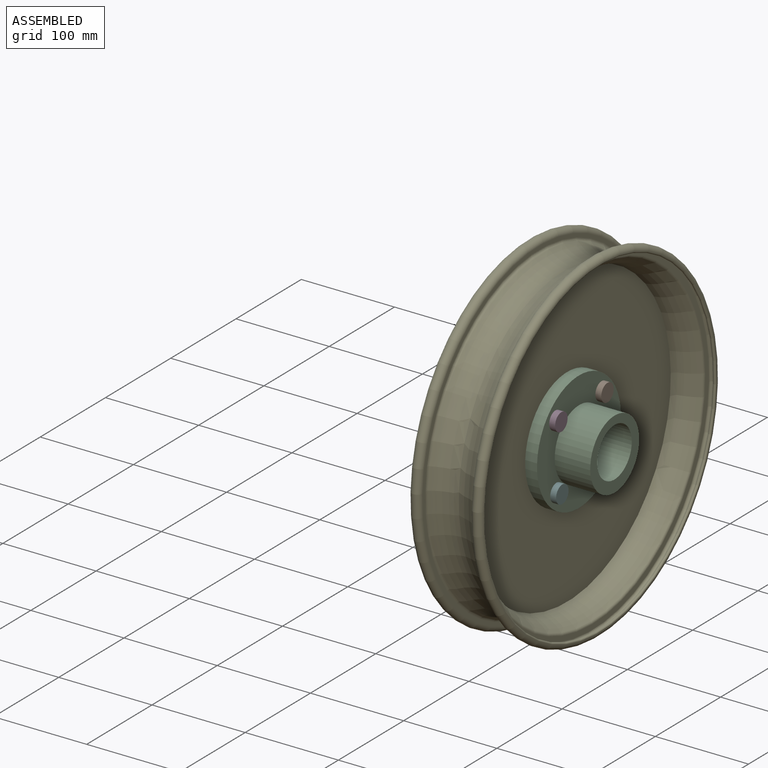
[diagram: assembled view]
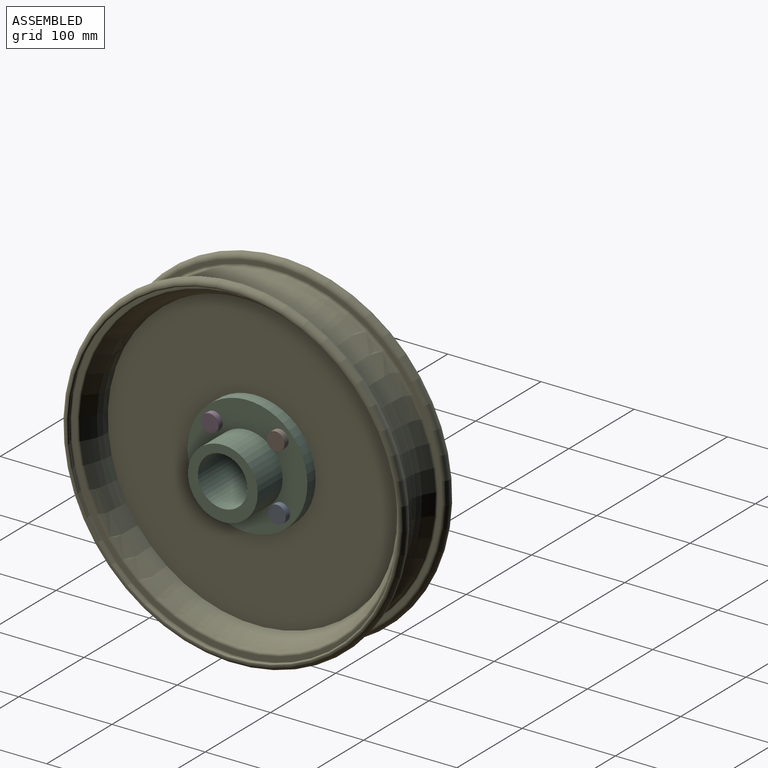
[diagram: assembled view, second angle]
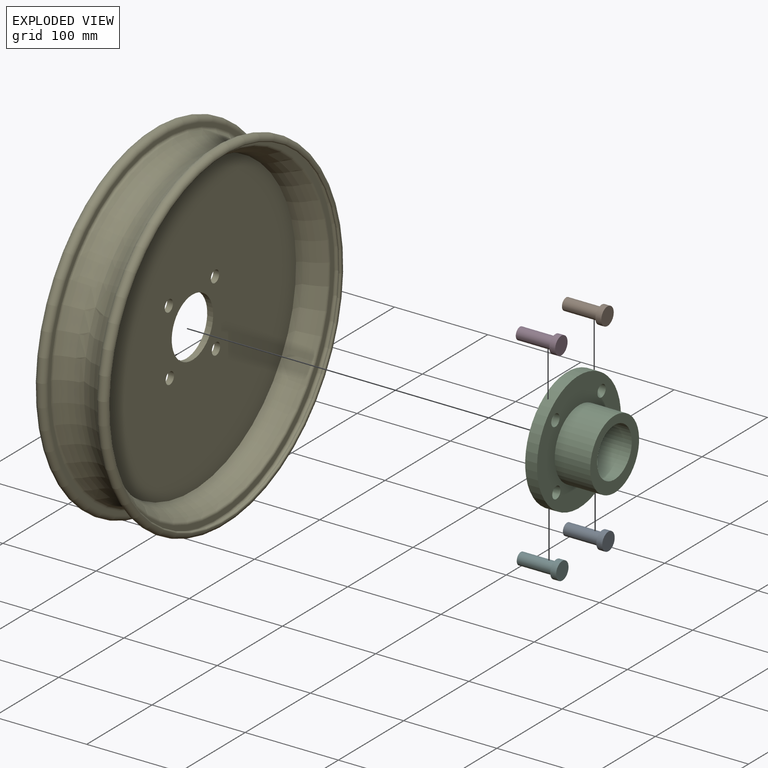
[diagram: exploded view]
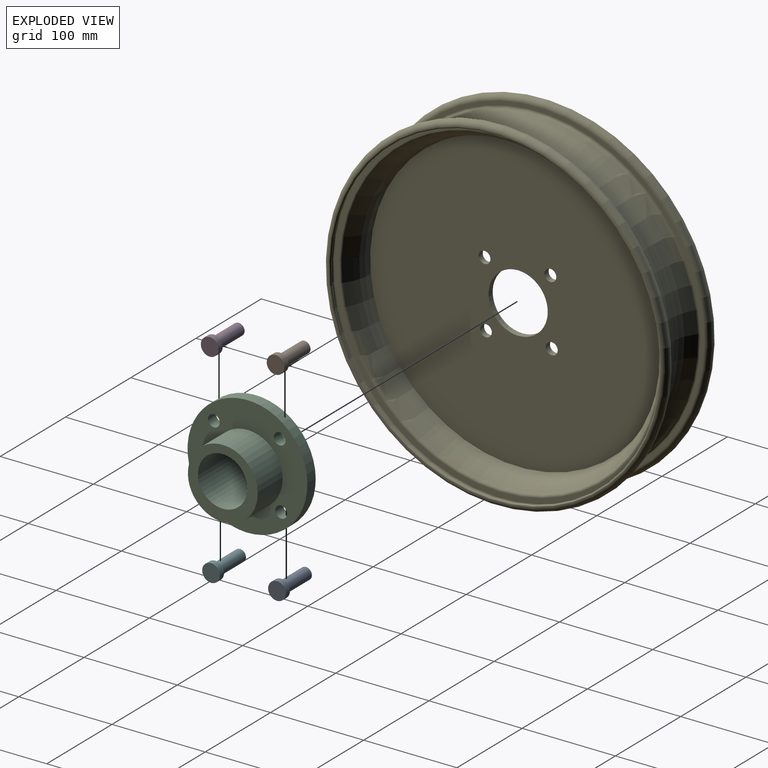
[diagram: exploded view, second angle]
ASSEMBLY  parts=6 mates=6
PART A: 5 faces, bbox 19.1x44.5x19.1 mm
  f0: cylinder r=6.35mm len=38.1mm, axis (0,-1,0), area 1520.1mm2, adj f1,f4
  f1: plane 12.7x12.7mm, normal (0,1,0), area 126.7mm2, adj f0
  f2: cylinder r=9.53mm len=19.05mm, axis (0,1,0), area 380mm2, adj f3,f4
  f3: plane 19.05x19.05mm, normal (0,-1,0), area 285mm2, adj f2
  f4: plane 19.05x19.05mm, normal (0,1,0), area 158.3mm2, adj f0,f2
PART B: same geometry as A
PART C: 12 faces, bbox 128.6x66.7x128.6 mm
  f0: cylinder r=64.31mm len=128.61mm, axis (0,1,0), area 5131.4mm2, adj f6,f7
  f1: cylinder r=6.35mm len=12.7mm, axis (0,1,0), area 506.7mm2, adj f6,f7
  f2: cylinder r=6.35mm len=12.7mm, axis (0,1,0), area 506.7mm2, adj f6,f7
  f3: cylinder r=6.35mm len=12.7mm, axis (0,1,0), area 506.7mm2, adj f6,f7
  f4: cylinder r=6.35mm len=12.7mm, axis (0,1,0), area 506.7mm2, adj f6,f7
  f5: cylinder r=26.48mm len=66.68mm, axis (0,1,0), area 11091.5mm2, adj f9,f11
  f6: plane 128.61x128.61mm, normal (0,-1,0), area 8078.4mm2, adj f0,f1,f2,f3,f4,f10
  f7: plane 128.61x128.61mm, normal (0,1,0), area 9317.8mm2, adj f0,f1,f2,f3,f4,f8
  f8: cylinder r=31.75mm len=63.5mm, axis (0,-1,0), area 3166.9mm2, adj f7,f9
  f9: plane 63.5x63.5mm, normal (0,1,0), area 964.8mm2, adj f5,f8
  f10: cylinder r=37.45mm len=74.9mm, axis (0,1,0), area 8965.3mm2, adj f6,f11
  f11: plane 74.9x74.9mm, normal (0,-1,0), area 2204.1mm2, adj f5,f10
PART D: same geometry as A
PART E: 25 faces, bbox 77.2x398.9x398.9 mm
  f0: plane 357.03x357.03mm, normal (-1,0,0), area 4708.2mm2, adj f1,f20
  f1: torus R=174.27mm, axis (-1,0,0), area 3007.5mm2, adj f0,f2
  f2: torus R=205.11mm, axis (-1,0,0), area 29476.3mm2, adj f1,f3
  f3: torus R=205.11mm, axis (-1,0,0), area 29476.3mm2, adj f2,f4
  f4: torus R=174.27mm, axis (-1,0,0), area 3007.5mm2, adj f3,f5
  f5: plane 357.03x357.03mm, normal (1,0,0), area 4708.2mm2, adj f4,f6
  f6: torus R=178.51mm, axis (-1,0,0), area 20685.9mm2, adj f5,f7
  f7: torus R=178.32mm, axis (-1,0,0), area 6041.5mm2, adj f6,f8
  f8: torus R=178.51mm, axis (-1,0,0), area 9165.8mm2, adj f7,f9
  f9: plane 357.03x357.03mm, normal (-1,0,0), area 6283.5mm2, adj f8,f10
  f10: torus R=172.82mm, axis (-1,0,0), area 2865.1mm2, adj f9,f11
  f11: torus R=205.11mm, axis (-1,0,0), area 29765.5mm2, adj f10,f12
  f12: plane 317.5x317.5mm, normal (-1,0,0), area 75499.4mm2, adj f11,f13,f21,f22,f23,f24
  f13: cylinder r=31.75mm len=63.5mm, axis (-1,0,0), area 1266.8mm2, adj f12,f14
  f14: plane 317.5x317.5mm, normal (1,0,0), area 75499.4mm2, adj f13,f15,f21,f22,f23,f24
  f15: torus R=205.11mm, axis (-1,0,0), area 29765.5mm2, adj f14,f16
  f16: torus R=172.82mm, axis (-1,0,0), area 2865.1mm2, adj f15,f17
  f17: plane 357.03x357.03mm, normal (1,0,0), area 6283.5mm2, adj f16,f18
  f18: torus R=178.51mm, axis (-1,0,0), area 9165.8mm2, adj f17,f19
  f19: torus R=178.32mm, axis (-1,0,0), area 6041.5mm2, adj f18,f20
  f20: torus R=178.51mm, axis (-1,0,0), area 20685.9mm2, adj f0,f19
  f21: cylinder r=6.35mm len=12.7mm, axis (-1,0,0), area 253.4mm2, adj f12,f14
  f22: cylinder r=6.35mm len=12.7mm, axis (-1,0,0), area 253.4mm2, adj f12,f14
  f23: cylinder r=6.35mm len=12.7mm, axis (-1,0,0), area 253.4mm2, adj f12,f14
  f24: cylinder r=6.35mm len=12.7mm, axis (-1,0,0), area 253.4mm2, adj f12,f14
PART F: same geometry as A
PLACE A rot(axis=(0.06,-0.06,1),90.2deg) t=(129.77,49.26,-51.07)mm
PLACE B rot(axis=(0.06,-0.06,1),90.2deg) t=(129.77,47.79,19.63)mm
PLACE C rot(axis=(0.06,-0.06,1),90.2deg) t=(117.07,126.16,-24)mm
PLACE D rot(axis=(0.06,-0.06,1),90.2deg) t=(129.77,-22.9,18.16)mm
PLACE E rot(axis=(1,0,0),103deg) t=(113.9,28.84,-46.51)mm
PLACE F rot(axis=(0.06,-0.06,1),90.2deg) t=(129.77,-21.44,-52.53)mm
MATE revolute C.f1 <-> E.f24  axis (-1,0,0) through (117.07,90.08,10.61)mm
MATE revolute E.f22 <-> C.f2  axis (1,0,0) through (117.07,162.24,-58.62)mm
MATE fastened C.f3 <-> F.f0  axis (1,0,0) through (129.77,91.55,-60.08)mm
MATE fastened C.f2 <-> A.f0  axis (1,0,0) through (129.77,162.24,-58.62)mm
MATE fastened C.f4 <-> B.f0  axis (1,0,0) through (129.77,160.78,12.08)mm
MATE fastened C.f1 <-> D.f0  axis (-1,0,0) through (129.77,90.08,10.61)mm
